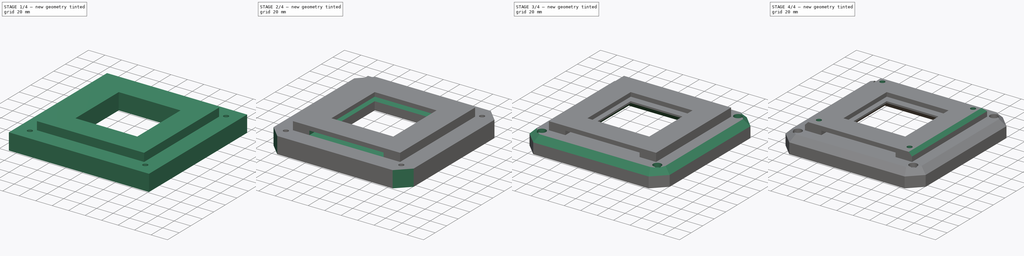
[diagram: build sequence overview — one tinted view per stage of 4, left to right]
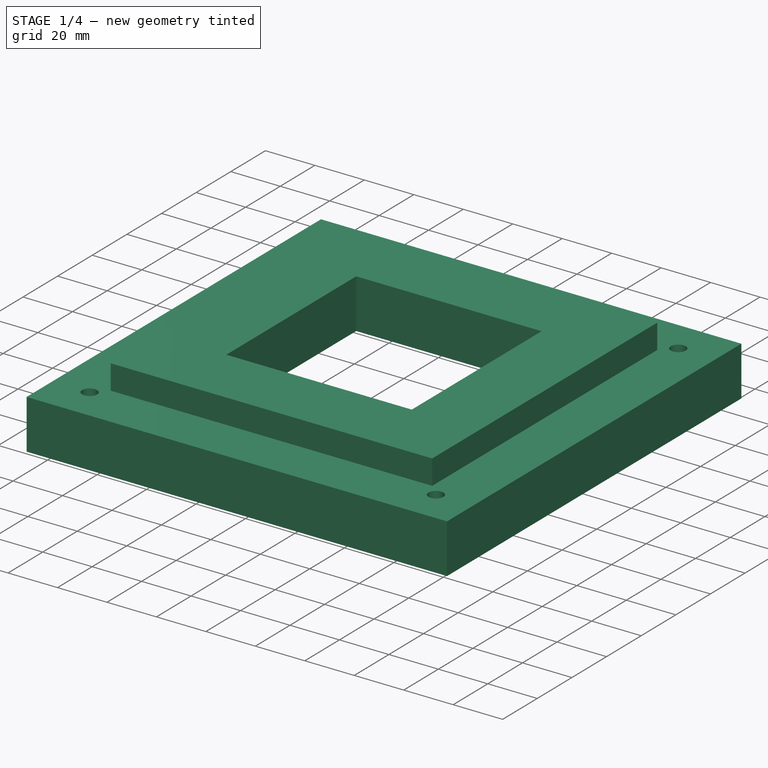
[diagram: stage 1 of 4 — iso view after this stage's code; geometry added in this stage tinted green]
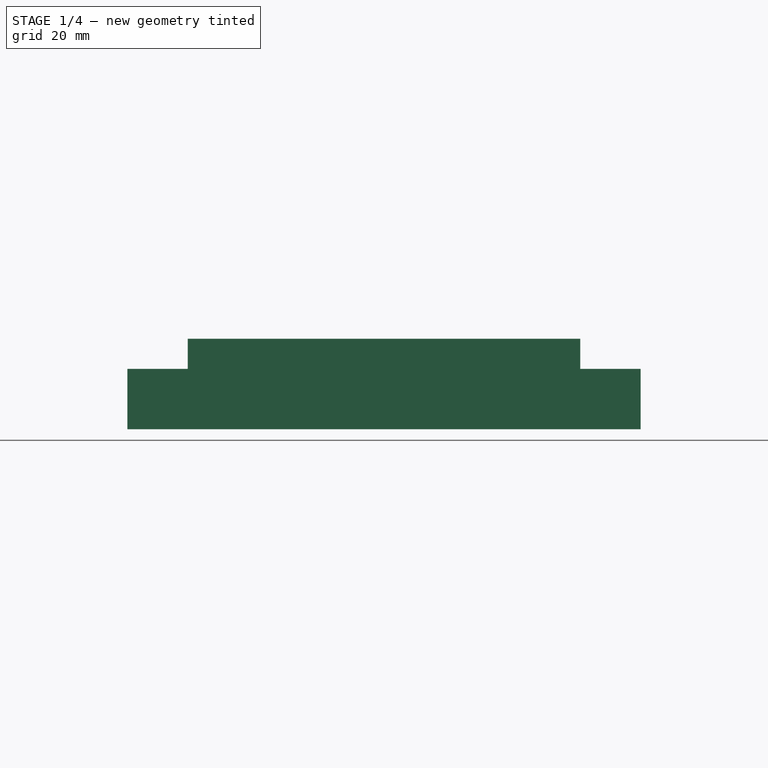
[diagram: stage 1 of 4 — front view after this stage's code; geometry added in this stage tinted green]
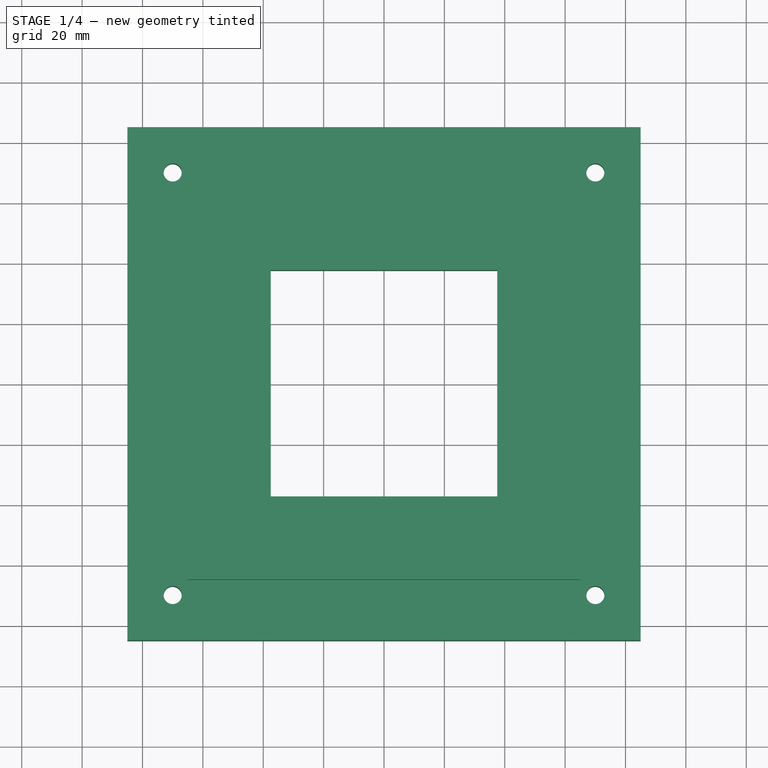
[diagram: stage 1 of 4 — top view after this stage's code; geometry added in this stage tinted green]
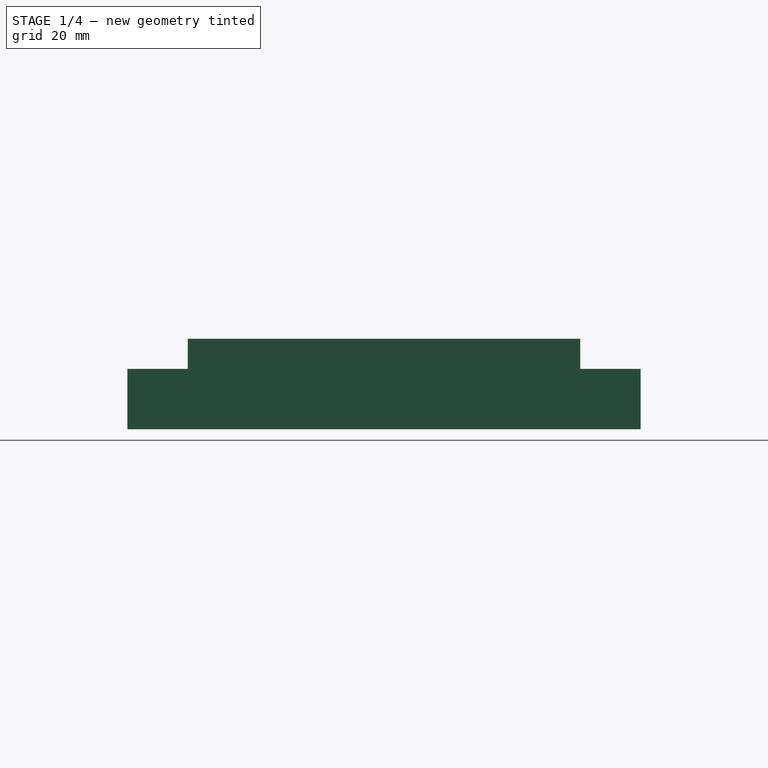
[diagram: stage 1 of 4 — right view after this stage's code; geometry added in this stage tinted green]
FCSTD DOCUMENT  (FreeCAD 2023.521R14555 (Git shallow))
Label: Light_mount
License: All rights reserved
objects: Sketcher::SketchObject×5, PartDesign::Chamfer×4, PartDesign::CoordinateSystem×3, PartDesign::Pocket×3, PartDesign::Pad×2, Part::SubShapeBinder×2, PartDesign::Plane×1, PartDesign::Body×1, App::Part×1
note: 44 computed .brp shape members not serialized (recipe doc carries the construction recipe); baked Part::Feature solids carry a one-line shape summary decoded from their .brp

FEATURE [PartDesign::CoordinateSystem] LCS_0
  AttacherType = Attacher::AttachEngine3D
  AttachmentSupport = -> [X_Axis]
  InvalidShape = false
  MapMode = 2
  Support = -> [X_Axis]
  TreeRank = 3
  ValidateShape = false
FEATURE [PartDesign::CoordinateSystem] LCS_0001
  AttacherType = Attacher::AttachEngine3D
  AttachmentSupport = -> [X_Axis001]
  InvalidShape = false
  MapMode = 2
  Support = -> [X_Axis001]
  TreeRank = 21
  ValidateShape = false
FEATURE [Sketcher::SketchObject] Sketch
  ArcFitTolerance = 1e-06
  AttachmentSupport = -> [XY_Plane001]
  ExternalBSplineMaxDegree = 5
  ExternalBSplineTolerance = 0.0001
  FullyConstrained = true
  InternalTolerance = 1e-06
  InvalidShape = false
  MakeInternals = false
  MapMode = 5
  Support = -> [XY_Plane001]
  TreeRank = 23
  ValidateShape = false
  sketch-geometry (19):
    g0: LineSegment StartX=-65 StartY=-65 StartZ=0 EndX=-65 EndY=65 EndZ=0
    g1: LineSegment StartX=-65 StartY=65 StartZ=0 EndX=65 EndY=65 EndZ=0
    g2: LineSegment StartX=65 StartY=65 StartZ=0 EndX=65 EndY=-65 EndZ=0
    g3: LineSegment StartX=65 StartY=-65 StartZ=0 EndX=-65 EndY=-65 EndZ=0
    g4: GeomPoint [constr] X=0 Y=0 Z=0
    g5: LineSegment [constr] StartX=-70 StartY=-70 StartZ=0 EndX=-70 EndY=70 EndZ=0
    g6: LineSegment [constr] StartX=-70 StartY=70 StartZ=0 EndX=70 EndY=70 EndZ=0
    g7: LineSegment [constr] StartX=70 StartY=70 StartZ=0 EndX=70 EndY=-70 EndZ=0
    g8: LineSegment [constr] StartX=70 StartY=-70 StartZ=0 EndX=-70 EndY=-70 EndZ=0
    g9: GeomPoint [constr] X=0 Y=0 Z=0
    g10: LineSegment StartX=-85 StartY=-85 StartZ=0 EndX=-85 EndY=85 EndZ=0
    g11: LineSegment StartX=-85 StartY=85 StartZ=0 EndX=85 EndY=85 EndZ=0
    g12: LineSegment StartX=85 StartY=85 StartZ=0 EndX=85 EndY=-85 EndZ=0
    g13: LineSegment StartX=85 StartY=-85 StartZ=0 EndX=-85 EndY=-85 EndZ=0
    g14: GeomPoint [constr] X=0 Y=0 Z=0
    g15: Circle CenterX=-70 CenterY=70 CenterZ=0 NormalX=0 NormalY=0 NormalZ=1 AngleXU=0 Radius=3
    g16: Circle CenterX=-70 CenterY=-70 CenterZ=0 NormalX=0 NormalY=0 NormalZ=1 AngleXU=0 Radius=3
    g17: Circle CenterX=70 CenterY=-70 CenterZ=0 NormalX=0 NormalY=0 NormalZ=1 AngleXU=0 Radius=3
    g18: Circle CenterX=70 CenterY=70 CenterZ=0 NormalX=0 NormalY=0 NormalZ=1 AngleXU=0 Radius=3
  constraints (44):
    c: Coincident(g0,g1)
    c: Coincident(g1,g2)
    c: Coincident(g2,g3)
    c: Coincident(g3,g0)
    c: Horizontal(g1)
    c: Horizontal(g3)
    c: Vertical(g0)
    c: Vertical(g2)
    c: Symmetric(g1,g0,g4)
    c: Coincident(g4,g-1)
    c: Coincident(g5,g6)
    c: Coincident(g6,g7)
    c: Coincident(g7,g8)
    c: Coincident(g8,g5)
    c: Horizontal(g6)
    c: Horizontal(g8)
    c: Vertical(g5)
    c: Vertical(g7)
    c: Symmetric(g6,g5,g9)
    c: Coincident(g9,g4)
    c: Coincident(g10,g11)
    c: Coincident(g11,g12)
    c: Coincident(g12,g13)
    c: Coincident(g13,g10)
    c: Horizontal(g11)
    c: Horizontal(g13)
    c: Vertical(g10)
    c: Vertical(g12)
    c: Symmetric(g11,g10,g14)
    c: Coincident(g14,g4)
    c: Equal(g1,g0)
    c: Equal(g6,g5)
    c: Equal(g11,g10)
    c: DistanceX(g6,g6) = 140
    c: DistanceX(g11,g11) = 170
    c: DistanceX(g1,g1) = 130
    c: Coincident(g15,g5)
    c: Coincident(g16,g5)
    c: Coincident(g17,g7)
    c: Coincident(g18,g6)
    c: Equal(g17,g18)
    c: Equal(g18,g16)
    c: Equal(g16,g15)
    c: Diameter(g15) = 6
FEATURE [PartDesign::Pad] Pad
  AddSubType = 0
  AlongSketchNormal = false
  AutoTaperInnerAngle = true
  CheckUpToFaceLimits = true
  ClaimChildren = false
  Direction = (0,0,1)
  Fit = 0
  FitJoin = 0
  InnerFit = 0
  InnerFitJoin = 0
  InvalidShape = false
  Length = 20
  Length2 = 10
  Linearize = true
  NewSolid = false
  Profile = -> Sketch
  ReferenceAxis = -> Sketch [N_Axis]
  Suppress = false
  TaperInnerAngle = 0
  TaperInnerAngleRev = 0
  TreeRank = 24
  Type = 0
  ValidateShape = true
  _ProfileBasedVersion = 1
FEATURE [Part::SubShapeBinder] Import  label="Import(XY_Plane)"
  BindCopyOnChange = 0
  BindMode = 0
  ClaimChildren = false
  Context = -> Light_mount [Body.Import.]
  EdgeTolerance = 1e-06
  FillStyle = 0
  Fuse = false
  InvalidShape = false
  MakeFace = false
  MergeEdges = true
  OffsetFill = false
  OffsetIntersection = false
  OffsetJoinType = 0
  OffsetOpenResult = false
  Outline = false
  PartialLoad = false
  Relative = true
  SplitEdges = false
  Support = -> [XY_Plane]
  TightBound = false
  TreeRank = 28
  ValidateShape = false
  _Version = 8
FEATURE [PartDesign::Plane] DatumPlane
  AttachmentOffset = pos=(0,0,10) rot=(0,0,1;0rad)
  AttachmentSupport = -> [Import]
  InvalidShape = false
  Length = 10
  MapMode = 5
  MinimumLength = 10
  MinimumWidth = 10
  Placement = pos=(0,0,10) rot=(0,0,1;0rad)
  ResizeMode = 0
  Support = -> [Import]
  TreeRank = 27
  ValidateShape = false
  Width = 10
FEATURE [Sketcher::SketchObject] Sketch001
  ArcFitTolerance = 1e-06
  AttachmentSupport = -> [DatumPlane]
  ExternalBSplineMaxDegree = 5
  ExternalBSplineTolerance = 0.0001
  ExternalGeometry = -> [Pad]
  FullyConstrained = true
  InternalTolerance = 1e-06
  InvalidShape = false
  MakeInternals = false
  MapMode = 5
  Placement = pos=(0,0,10) rot=(0,0,1;0rad)
  Support = -> [DatumPlane]
  TreeRank = 29
  ValidateShape = false
  sketch-geometry (10):
    g0: LineSegment StartX=-65 StartY=-65 StartZ=0 EndX=-65 EndY=65 EndZ=0
    g1: LineSegment StartX=-65 StartY=65 StartZ=0 EndX=65 EndY=65 EndZ=0
    g2: LineSegment StartX=65 StartY=65 StartZ=0 EndX=65 EndY=-65 EndZ=0
    g3: LineSegment StartX=65 StartY=-65 StartZ=0 EndX=-65 EndY=-65 EndZ=0
    g4: GeomPoint [constr] X=6e-16 Y=-2e-16 Z=0
    g5: LineSegment StartX=-37.5 StartY=-37.5 StartZ=0 EndX=-37.5 EndY=37.5 EndZ=0
    g6: LineSegment StartX=-37.5 StartY=37.5 StartZ=0 EndX=37.5 EndY=37.5 EndZ=0
    g7: LineSegment StartX=37.5 StartY=37.5 StartZ=0 EndX=37.5 EndY=-37.5 EndZ=0
    g8: LineSegment StartX=37.5 StartY=-37.5 StartZ=0 EndX=-37.5 EndY=-37.5 EndZ=0
    g9: GeomPoint [constr] X=6e-16 Y=-2e-16 Z=0
  constraints (23):
    c: Coincident(g0,g1)
    c: Coincident(g1,g2)
    c: Coincident(g2,g3)
    c: Coincident(g3,g0)
    c: Horizontal(g1)
    c: Horizontal(g3)
    c: Vertical(g0)
    c: Vertical(g2)
    c: Symmetric(g1,g0,g4)
    c: Coincident(g4,g-1)
    c: Coincident(g5,g6)
    c: Coincident(g6,g7)
    c: Coincident(g7,g8)
    c: Coincident(g8,g5)
    c: Horizontal(g6)
    c: Horizontal(g8)
    c: Vertical(g5)
    c: Vertical(g7)
    c: Symmetric(g6,g5,g9)
    c: Coincident(g1,g-3)
    c: DistanceX(g6,g6) = 75
    c: Coincident(g4,g9)
    c: Equal(g6,g7)
FEATURE [PartDesign::Pad] Pad001
  AddSubType = 0
  AlongSketchNormal = false
  AutoTaperInnerAngle = true
  BaseFeature = -> Pad
  CheckUpToFaceLimits = true
  ClaimChildren = false
  Direction = (0,0,1)
  Fit = 0
  FitJoin = 0
  InnerFit = 0
  InnerFitJoin = 0
  InvalidShape = false
  Length = 10
  Length2 = 10
  Linearize = true
  NewSolid = false
  Offset = 10
  Profile = -> Sketch001
  ReferenceAxis = -> Sketch001 [N_Axis]
  Reversed = true
  Suppress = false
  TaperInnerAngle = 0
  TaperInnerAngleRev = 0
  TreeRank = 30
  Type = 3
  UpToFace = -> Pad [Face14]
  ValidateShape = true
  _ProfileBasedVersion = 1
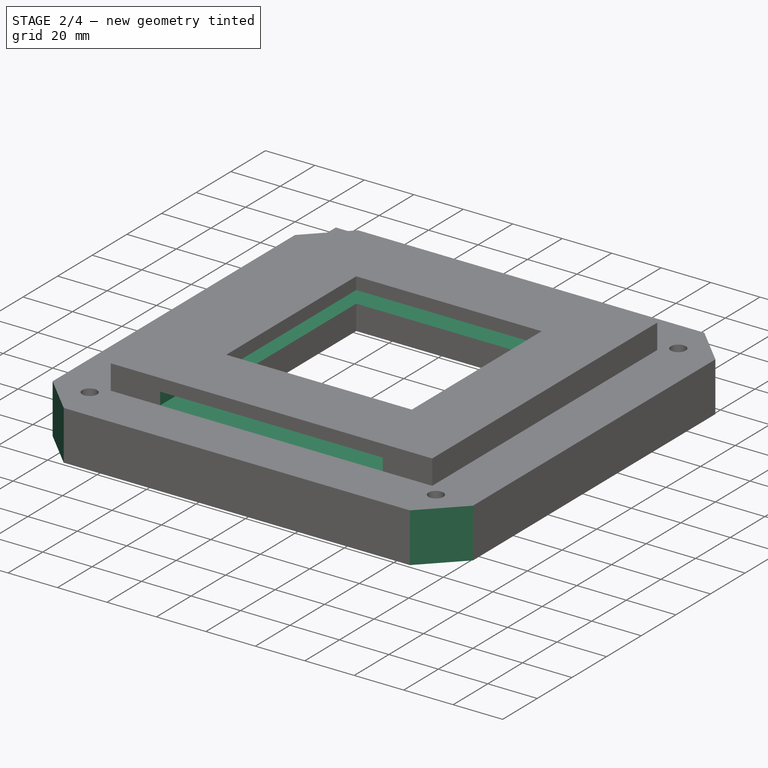
[diagram: stage 2 of 4 — iso view after this stage's code; geometry added in this stage tinted green]
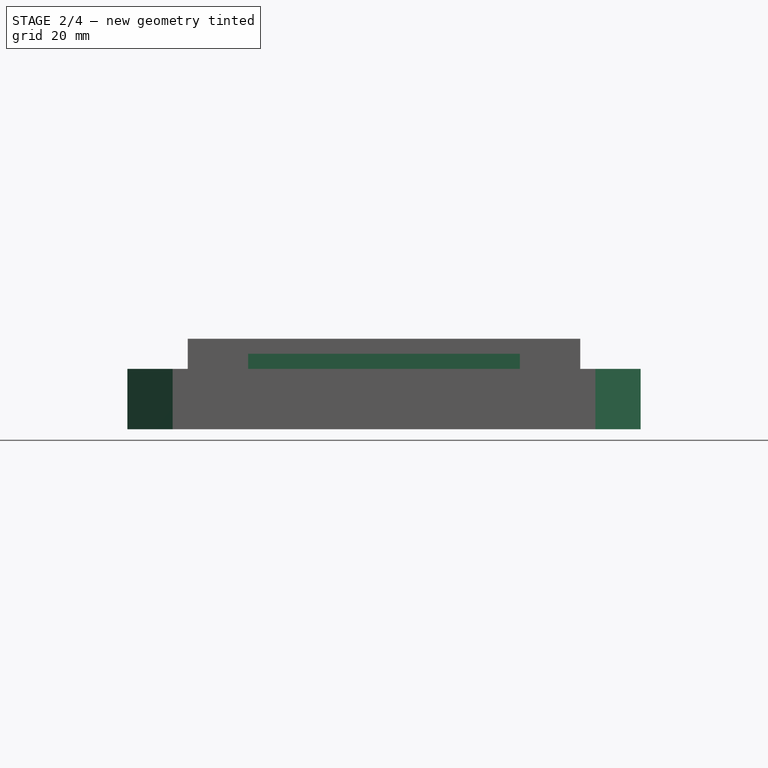
[diagram: stage 2 of 4 — front view after this stage's code; geometry added in this stage tinted green]
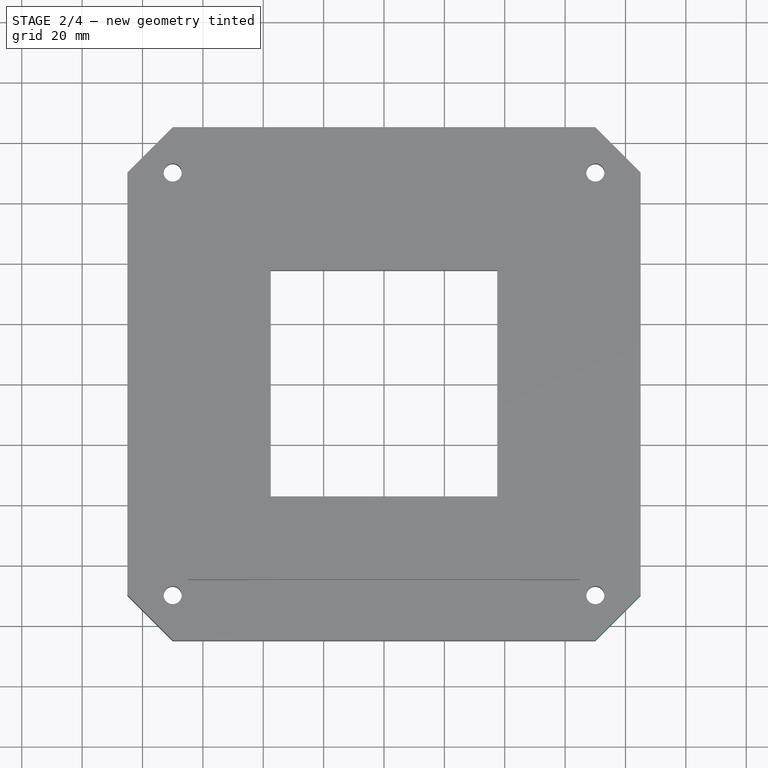
[diagram: stage 2 of 4 — top view after this stage's code; geometry added in this stage tinted green]
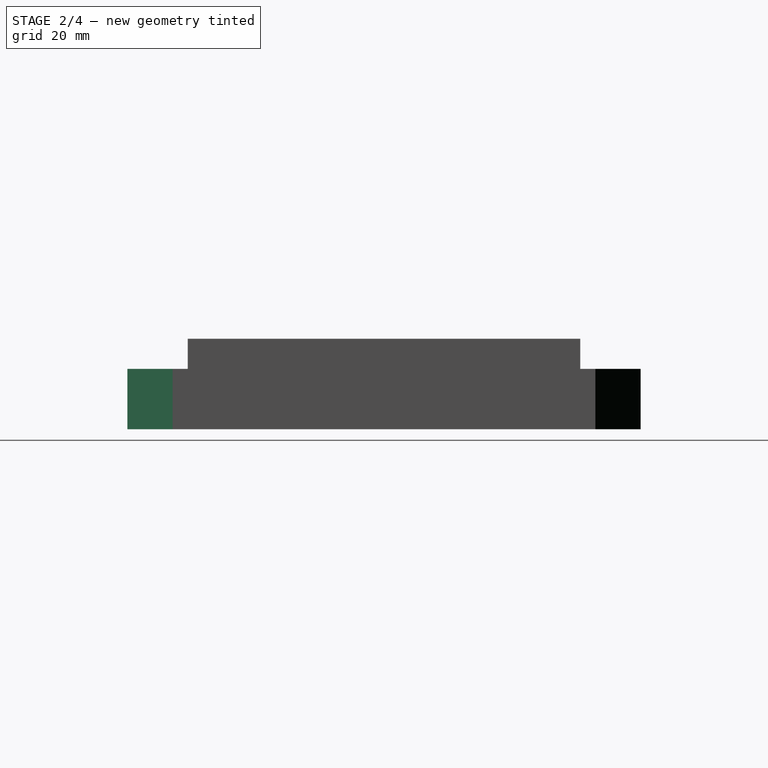
[diagram: stage 2 of 4 — right view after this stage's code; geometry added in this stage tinted green]
FEATURE [Sketcher::SketchObject] Sketch002
  ArcFitTolerance = 1e-06
  AttachmentSupport = -> [Pad001]
  ExternalBSplineMaxDegree = 5
  ExternalBSplineTolerance = 0.0001
  ExternalGeometry = -> [Pad001]
  FullyConstrained = true
  InternalTolerance = 1e-06
  InvalidShape = false
  MakeInternals = false
  MapMode = 5
  Placement = pos=(0,-65,0) rot=(1,0,0;1.5708rad)
  Support = -> [Pad001]
  TreeRank = 31
  ValidateShape = false
  sketch-geometry (5):
    g0: LineSegment StartX=-45 StartY=20 StartZ=0 EndX=-45 EndY=25 EndZ=0
    g1: LineSegment StartX=-45 StartY=25 StartZ=0 EndX=45 EndY=25 EndZ=0
    g2: LineSegment StartX=45 StartY=25 StartZ=0 EndX=45 EndY=20 EndZ=0
    g3: LineSegment StartX=45 StartY=20 StartZ=0 EndX=-45 EndY=20 EndZ=0
    g4: GeomPoint [constr] X=0 Y=22.5 Z=0
  constraints (13):
    c: Coincident(g0,g1)
    c: Coincident(g1,g2)
    c: Coincident(g2,g3)
    c: Coincident(g3,g0)
    c: Horizontal(g1)
    c: Horizontal(g3)
    c: Vertical(g0)
    c: Vertical(g2)
    c: Symmetric(g1,g0,g4)
    c: Vertical(g4,g-1)
    c: Horizontal(g0,g-3)
    c: DistanceX(g1,g1) = 90
    c: DistanceY(g2,g2) = 5
FEATURE [PartDesign::Pocket] Pocket
  AddSubType = 1
  AlongSketchNormal = false
  AutoTaperInnerAngle = true
  BaseFeature = -> Pad001
  CheckUpToFaceLimits = true
  ClaimChildren = false
  Direction = (0,1,-2e-16)
  Fit = 0
  FitJoin = 0
  InnerFit = 0
  InnerFitJoin = 0
  InvalidShape = false
  Length = 0
  Length2 = 10
  Linearize = true
  NewSolid = false
  Offset = -5
  Profile = -> Sketch002
  ReferenceAxis = -> Sketch002 [N_Axis]
  Refine = true
  Suppress = false
  TaperInnerAngle = 0
  TaperInnerAngleRev = 0
  TreeRank = 32
  Type = 3
  UpToFace = -> Pad001 [Face16]
  ValidateShape = true
  _ProfileBasedVersion = 1
  _Version = 1
FEATURE [PartDesign::Chamfer] Chamfer
  AddSubType = 0
  Angle = 45
  Base = -> Pocket [Edge5,Edge1,Edge8,Edge2]
  BaseFeature = -> Pocket
  ChamferType = 0
  FlipDirection = false
  InvalidShape = false
  NewSolid = false
  Size = 15
  Size2 = 1
  SupportTransform = false
  Suppress = false
  TreeRank = 33
  UseAllEdges = false
  ValidateShape = true
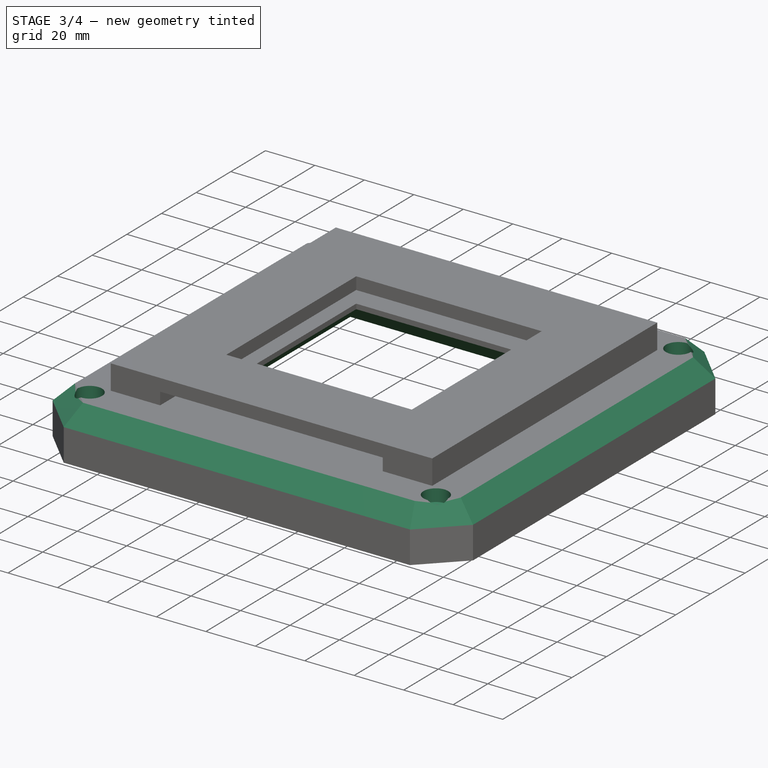
[diagram: stage 3 of 4 — iso view after this stage's code; geometry added in this stage tinted green]
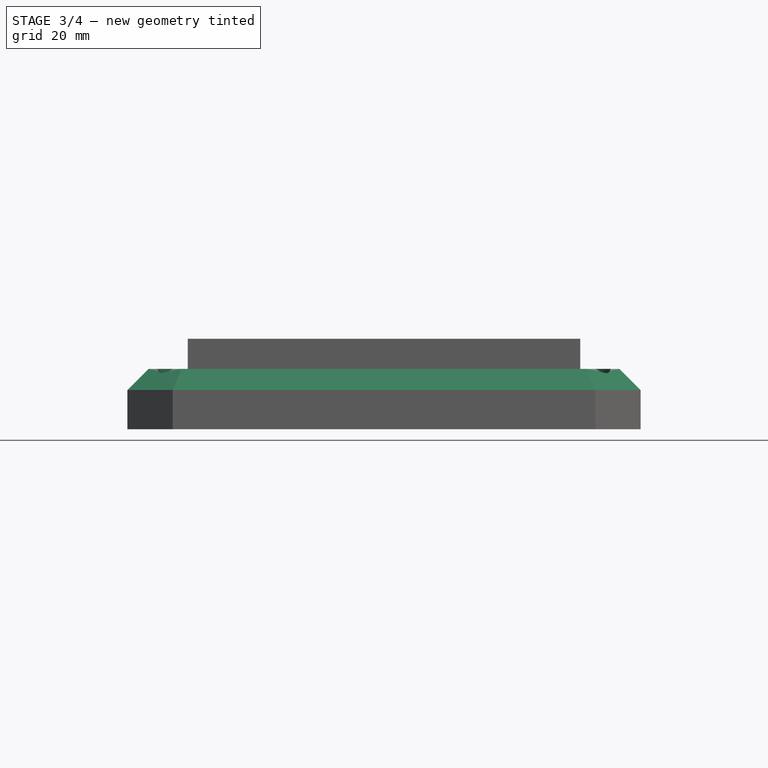
[diagram: stage 3 of 4 — front view after this stage's code; geometry added in this stage tinted green]
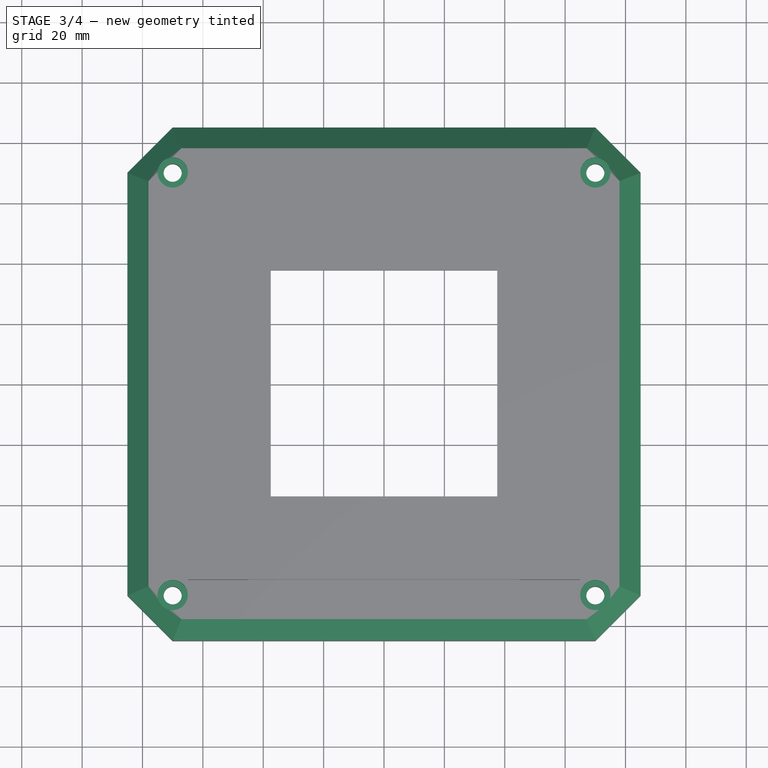
[diagram: stage 3 of 4 — top view after this stage's code; geometry added in this stage tinted green]
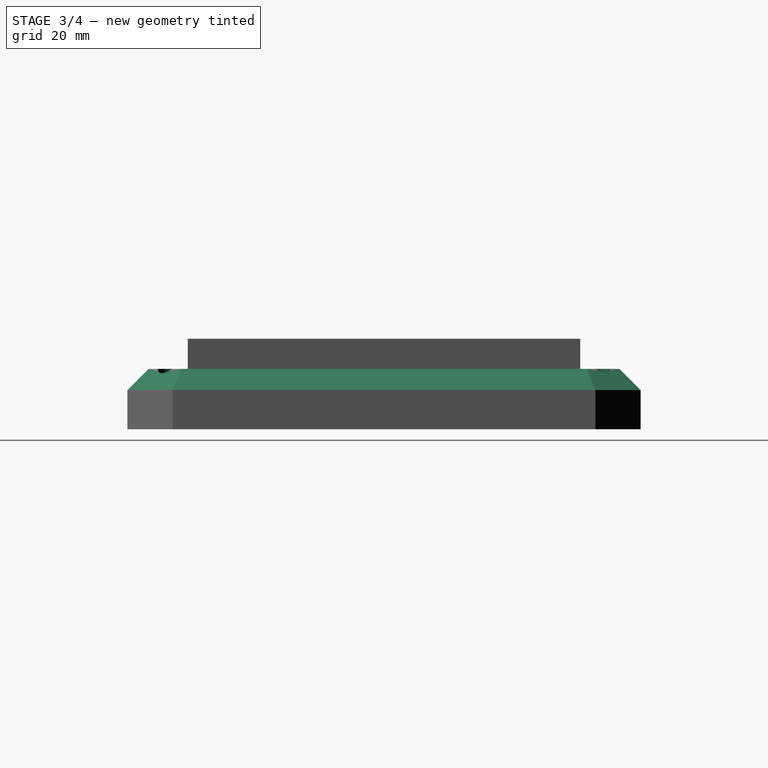
[diagram: stage 3 of 4 — right view after this stage's code; geometry added in this stage tinted green]
FEATURE [PartDesign::Chamfer] Chamfer001
  AddSubType = 0
  Angle = 45
  Base = -> Chamfer [Edge26,Edge24,Edge21,Edge4,Edge23,Edge25,Edge27,Edge28]
  BaseFeature = -> Chamfer
  ChamferType = 0
  FlipDirection = false
  InvalidShape = false
  NewSolid = false
  Size = 7
  Size2 = 1
  SupportTransform = false
  Suppress = false
  TreeRank = 34
  UseAllEdges = false
  ValidateShape = true
FEATURE [PartDesign::Chamfer] Chamfer002
  AddSubType = 0
  Angle = 45
  Base = -> Chamfer001 [Edge98,Edge96,Edge93,Edge100]
  BaseFeature = -> Chamfer001
  ChamferType = 0
  FlipDirection = false
  InvalidShape = false
  NewSolid = false
  Size = 8
  Size2 = 1
  SupportTransform = false
  Suppress = false
  TreeRank = 35
  UseAllEdges = false
  ValidateShape = true
FEATURE [Sketcher::SketchObject] Sketch003
  ArcFitTolerance = 1e-06
  AttachmentSupport = -> [Chamfer002]
  ExternalBSplineMaxDegree = 5
  ExternalBSplineTolerance = 0.0001
  ExternalGeometry = -> [Chamfer002]
  FullyConstrained = true
  InternalTolerance = 1e-06
  InvalidShape = false
  MakeInternals = false
  MapMode = 5
  Placement = pos=(0,0,20) rot=(0,0,1;0rad)
  Support = -> [Chamfer002]
  TreeRank = 36
  ValidateShape = false
  sketch-geometry (4):
    g0: Circle CenterX=-70 CenterY=70 CenterZ=0 NormalX=0 NormalY=0 NormalZ=1 AngleXU=0 Radius=5
    g1: Circle CenterX=-70 CenterY=-70 CenterZ=0 NormalX=0 NormalY=0 NormalZ=1 AngleXU=0 Radius=5
    g2: Circle CenterX=70 CenterY=-70 CenterZ=0 NormalX=0 NormalY=0 NormalZ=1 AngleXU=0 Radius=5
    g3: Circle CenterX=70 CenterY=70 CenterZ=0 NormalX=0 NormalY=0 NormalZ=1 AngleXU=0 Radius=5
  constraints (8):
    c: Coincident(g1,g-4)
    c: Coincident(g2,g-5)
    c: Coincident(g3,g-6)
    c: Coincident(g0,g-3)
    c: Equal(g0,g1)
    c: Equal(g1,g3)
    c: Equal(g3,g2)
    c: Diameter(g2) = 10
FEATURE [PartDesign::Pocket] Pocket001
  AddSubType = 1
  AlongSketchNormal = false
  AutoTaperInnerAngle = true
  BaseFeature = -> Chamfer002
  CheckUpToFaceLimits = true
  ClaimChildren = false
  Direction = (0,0,-1)
  Fit = 0
  FitJoin = 0
  InnerFit = 0
  InnerFitJoin = 0
  InvalidShape = false
  Length = 5
  Length2 = 10
  Linearize = true
  NewSolid = false
  Offset = 18
  Profile = -> Sketch003
  ReferenceAxis = -> Sketch003 [N_Axis]
  Suppress = false
  TaperInnerAngle = 0
  TaperInnerAngleRev = 0
  TreeRank = 37
  Type = 0
  ValidateShape = true
  _ProfileBasedVersion = 1
  _Version = 1
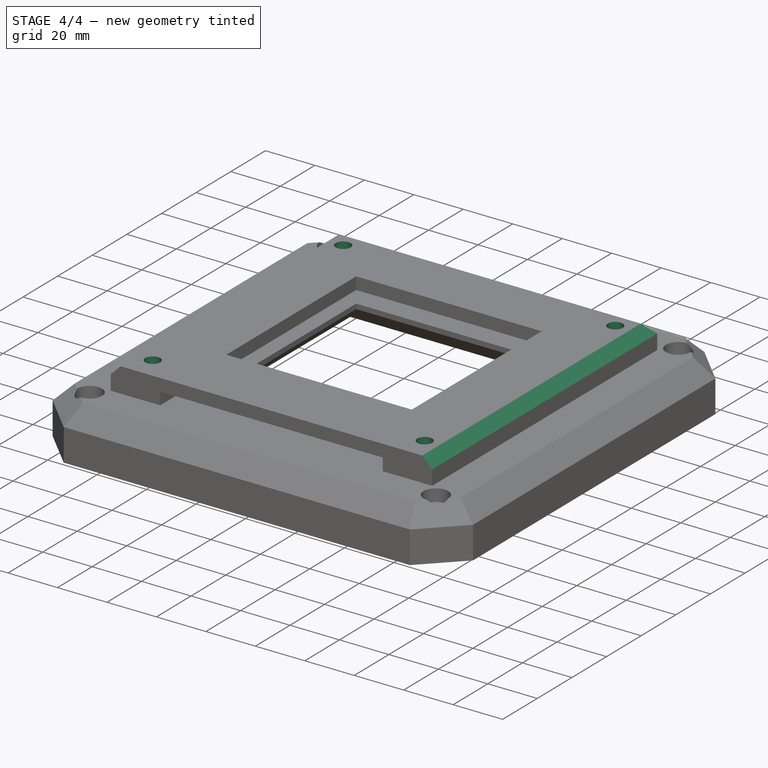
[diagram: stage 4 of 4 — iso view after this stage's code; geometry added in this stage tinted green]
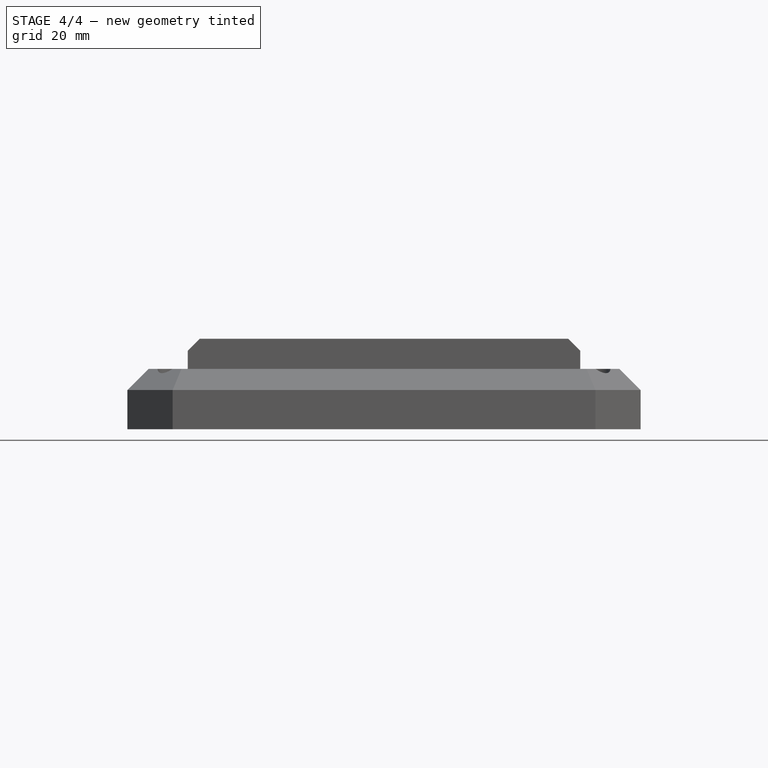
[diagram: stage 4 of 4 — front view after this stage's code; geometry added in this stage tinted green]
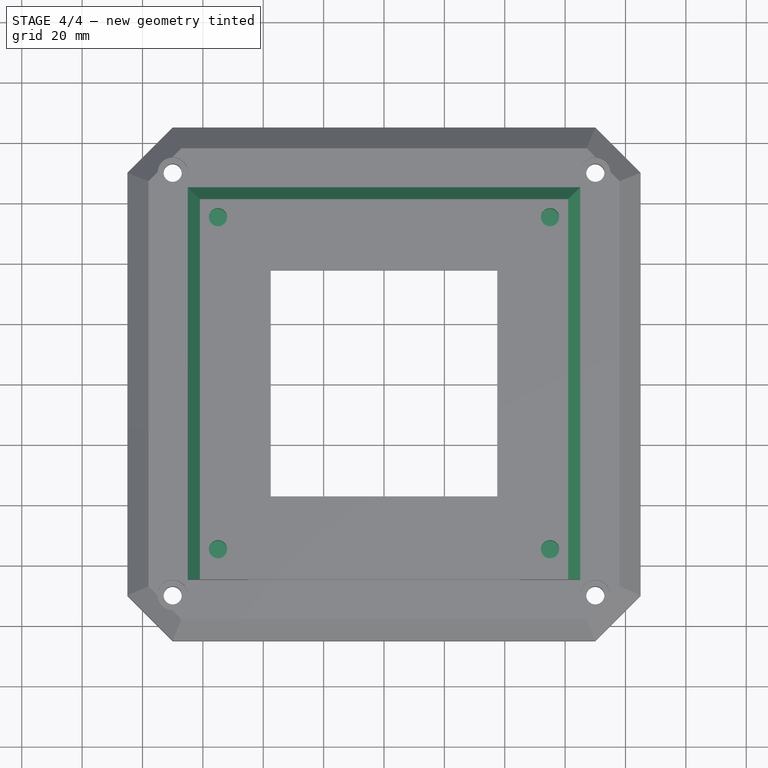
[diagram: stage 4 of 4 — top view after this stage's code; geometry added in this stage tinted green]
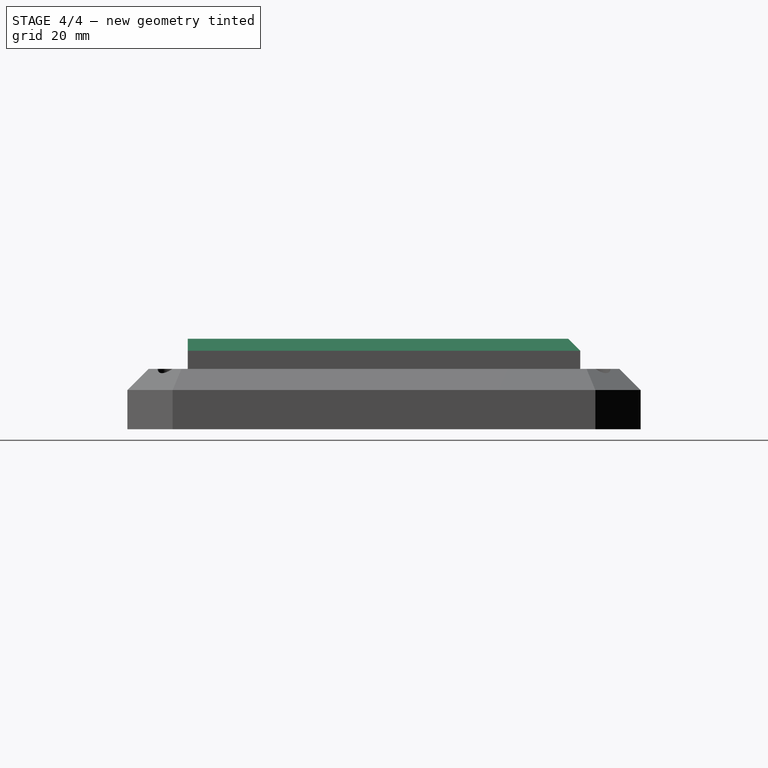
[diagram: stage 4 of 4 — right view after this stage's code; geometry added in this stage tinted green]
FEATURE [Sketcher::SketchObject] Sketch004
  ArcFitTolerance = 1e-06
  AttachmentSupport = -> [Pocket001]
  ExternalBSplineMaxDegree = 5
  ExternalBSplineTolerance = 0.0001
  FullyConstrained = true
  InternalTolerance = 1e-06
  InvalidShape = false
  MakeInternals = false
  MapMode = 5
  Placement = pos=(0,0,30) rot=(0,0,1;0rad)
  Support = -> [Pocket001]
  TreeRank = 38
  ValidateShape = false
  sketch-geometry (9):
    g0: Circle CenterX=-55 CenterY=55 CenterZ=0 NormalX=0 NormalY=0 NormalZ=1 AngleXU=0 Radius=3
    g1: Circle CenterX=55 CenterY=55 CenterZ=0 NormalX=0 NormalY=0 NormalZ=1 AngleXU=0 Radius=3
    g2: Circle CenterX=55 CenterY=-55 CenterZ=0 NormalX=0 NormalY=0 NormalZ=1 AngleXU=0 Radius=3
    g3: Circle CenterX=-55 CenterY=-55 CenterZ=0 NormalX=0 NormalY=0 NormalZ=1 AngleXU=0 Radius=3
    g4: LineSegment [constr] StartX=-55 StartY=-55 StartZ=0 EndX=-55 EndY=55 EndZ=0
    g5: LineSegment [constr] StartX=-55 StartY=55 StartZ=0 EndX=55 EndY=55 EndZ=0
    g6: LineSegment [constr] StartX=55 StartY=55 StartZ=0 EndX=55 EndY=-55 EndZ=0
    g7: LineSegment [constr] StartX=55 StartY=-55 StartZ=0 EndX=-55 EndY=-55 EndZ=0
    g8: GeomPoint [constr] X=0 Y=0 Z=0
  constraints (20):
    c: Coincident(g4,g5)
    c: Coincident(g5,g6)
    c: Coincident(g6,g7)
    c: Coincident(g7,g4)
    c: Horizontal(g5)
    c: Horizontal(g7)
    c: Vertical(g4)
    c: Vertical(g6)
    c: Symmetric(g5,g4,g8)
    c: Coincident(g8,g-1)
    c: Coincident(g5,g1)
    c: Coincident(g0,g4)
    c: Coincident(g3,g4)
    c: Coincident(g2,g6)
    c: Equal(g1,g2)
    c: Equal(g2,g0)
    c: Equal(g0,g3)
    c: Diameter(g0) = 6
    c: DistanceX(g5,g5) = 110
    c: Equal(g5,g6)
FEATURE [PartDesign::Pocket] Pocket002
  AddSubType = 1
  AlongSketchNormal = false
  AutoTaperInnerAngle = true
  BaseFeature = -> Pocket001
  CheckUpToFaceLimits = true
  ClaimChildren = false
  Direction = (0,0,-1)
  Fit = 0
  FitJoin = 0
  InnerFit = 0
  InnerFitJoin = 0
  InvalidShape = false
  Length = 12
  Length2 = 10
  Linearize = true
  NewSolid = false
  Profile = -> Sketch004
  ReferenceAxis = -> Sketch004 [N_Axis]
  Suppress = false
  TaperInnerAngle = 0
  TaperInnerAngleRev = 0
  TreeRank = 39
  Type = 0
  ValidateShape = true
  _ProfileBasedVersion = 1
  _Version = 1
FEATURE [PartDesign::Chamfer] Chamfer003
  AddSubType = 0
  Angle = 45
  Base = -> Pocket002 [Edge82,Edge90,Edge93]
  BaseFeature = -> Pocket002
  ChamferType = 0
  FlipDirection = false
  InvalidShape = false
  NewSolid = false
  Size = 4
  Size2 = 1
  SupportTransform = false
  Suppress = false
  TreeRank = 40
  UseAllEdges = false
  ValidateShape = true
FEATURE [PartDesign::Body] Body
  AutoGroupSolids = false
  ClaimAllChildren = false
  ExportMode = 0
  Group = -> [LCS_0001,Sketch,Pad,DatumPlane,Import,Sketch001,Pad001,Sketch002,Pocket,Chamfer,Chamfer001,Chamfer002,Sketch003,Pocket001,Sketch004,Pocket002,Chamfer003]
  InvalidShape = false
  Origin = -> Origin001
  Tip = -> Chamfer003
  TreeRank = 22
  ValidateShape = false
  _ExportChildren = -> [LCS_0001,Pad,DatumPlane,Import,Pad001,Pocket,Chamfer,Chamfer001,Chamfer002,Pocket001,Pocket002,Chamfer003]
  _GroupVersion = 1
FEATURE [Part::SubShapeBinder] Import001  label="Import001(Chamfer003)"
  BindCopyOnChange = 0
  BindMode = 0
  ClaimChildren = false
  EdgeTolerance = 1e-06
  FillStyle = 0
  Fuse = false
  InvalidShape = false
  MakeFace = false
  MergeEdges = true
  OffsetFill = false
  OffsetIntersection = false
  OffsetJoinType = 0
  OffsetOpenResult = false
  Outline = false
  PartialLoad = false
  Relative = true
  SplitEdges = false
  Support = -> [Body[Chamfer003.]]
  TightBound = false
  TreeRank = 44
  ValidateShape = false
  _Version = 8
FEATURE [PartDesign::CoordinateSystem] Local_CS  label="Filter"
  AttacherType = Attacher::AttachEngine3D
  AttachmentSupport = -> [Import001]
  InvalidShape = false
  MapMode = 45
  Placement = pos=(4e-16,60,22.5) rot=(0.57735,0.57735,0.57735;4.18879rad)
  Support = -> [Import001]
  TreeRank = 43
  ValidateShape = false
FEATURE [App::Part] Light_mount
  ClaimAllChildren = false
  ExportMode = 1
  Group = -> [LCS_0,Body,Local_CS]
  Origin = -> Origin
  TreeRank = 11
  _ExportChildren = -> [LCS_0,Body,Local_CS]
  _GroupVersion = 1
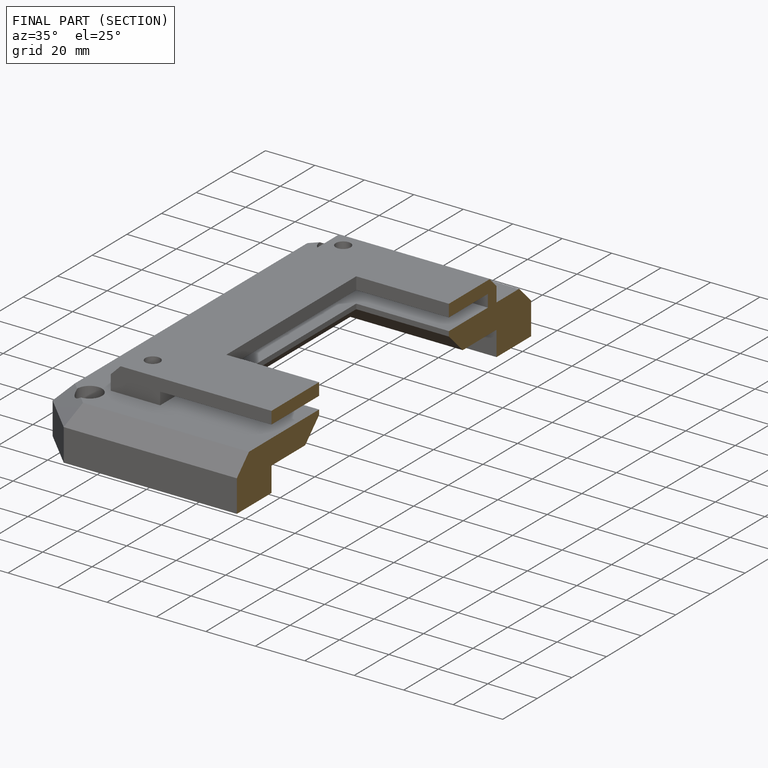
[diagram: finished part — half-section view (interior)]
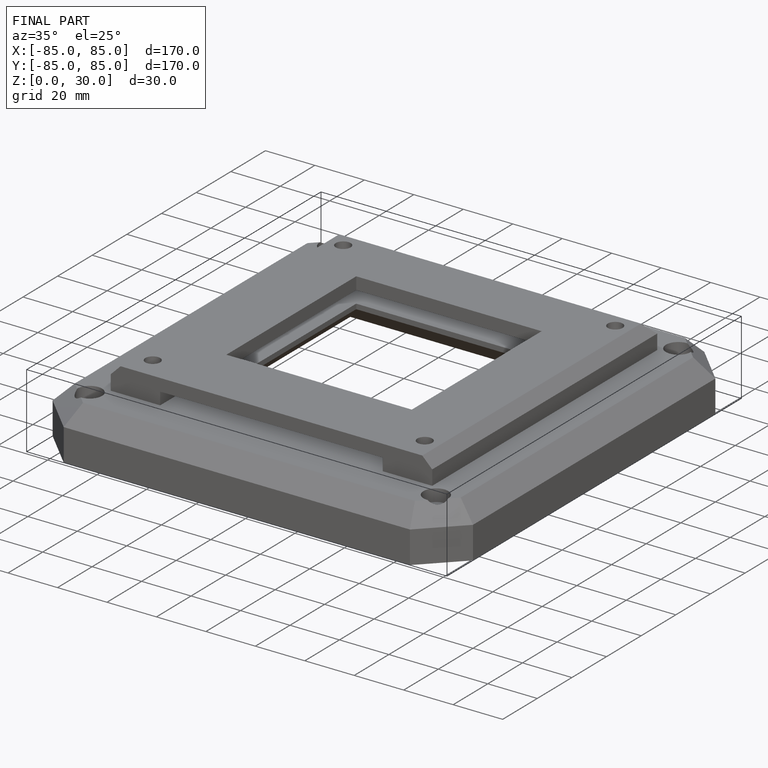
[diagram: finished part — iso view with bounding-box wireframe]
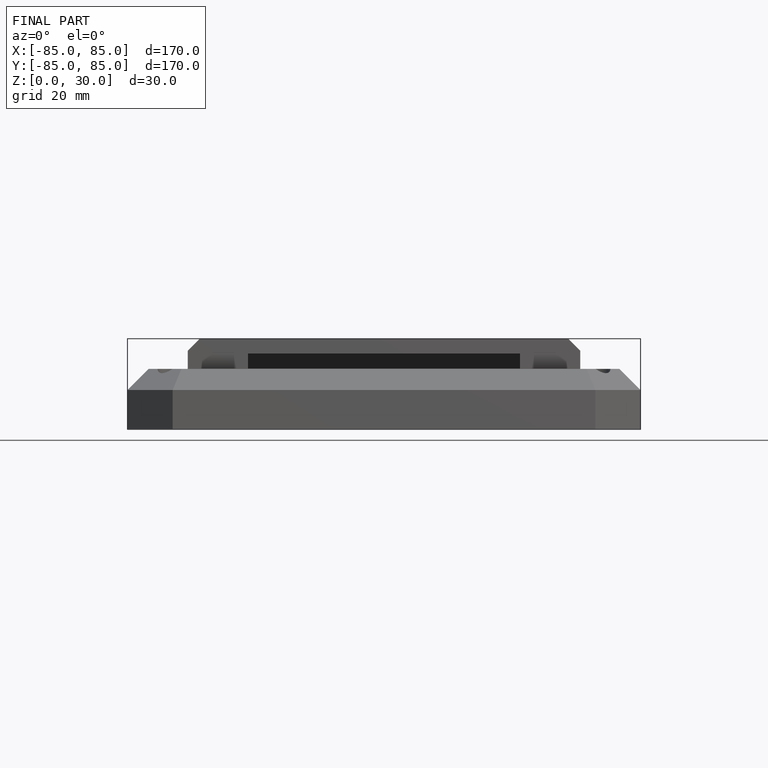
[diagram: finished part — front view with bounding-box wireframe]
